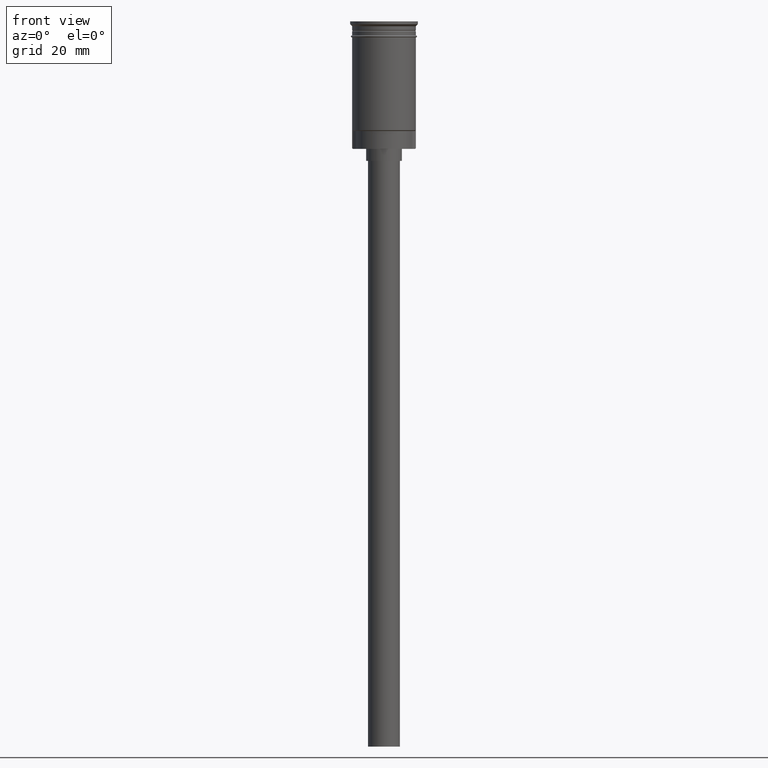
[diagram: clean part render]
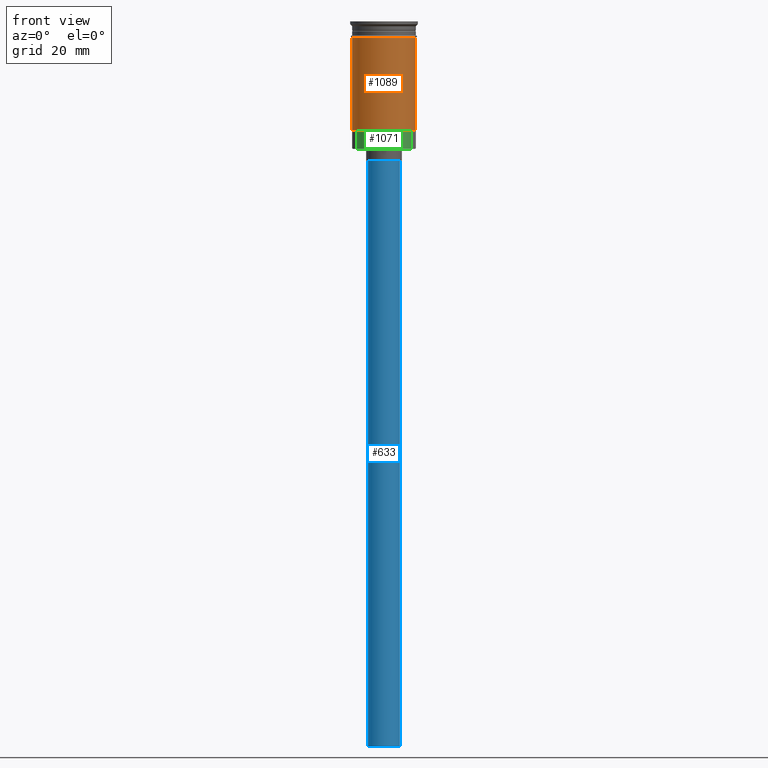
[diagram: same view with three faces highlighted in distinct colors, each labeled with its STEP entity id]
A machine part, front view with three faces highlighted in distinct colors.
Their STEP definitions:

[orange] entity #1089 — the highlighted cylindrical surface (edge-blend (fillet) strip) has radius 8 mm, axis along (-0, -0, 1).
#37 = LINE ( 'NONE', #151, #1169 ) ;
#113 = LINE ( 'NONE', #1078, #822 ) ;
#125 = CYLINDRICAL_SURFACE ( 'NONE', #983, 7.999999999999996447 ) ;
#151 = CARTESIAN_POINT ( 'NONE',  ( -7.999999999999996447, 9.797174393178821713E-16, 0.000000000000000000 ) ) ;
#179 = ORIENTED_EDGE ( 'NONE', *, *, #1066, .T. ) ;
#200 = EDGE_CURVE ( 'NONE', #944, #554, #666, .T. ) ;
#228 = ORIENTED_EDGE ( 'NONE', *, *, #1253, .F. ) ;
#264 = EDGE_CURVE ( 'NONE', #1410, #554, #113, .T. ) ;
#369 = DIRECTION ( 'NONE',  ( -0.000000000000000000, -0.000000000000000000, 1.000000000000000000 ) ) ;
#372 = DIRECTION ( 'NONE',  ( 1.000000000000000000, 0.000000000000000000, 0.000000000000000000 ) ) ;
#406 = ORIENTED_EDGE ( 'NONE', *, *, #264, .T. ) ;
#495 = DIRECTION ( 'NONE',  ( -0.000000000000000000, -0.000000000000000000, 1.000000000000000000 ) ) ;
#498 = FACE_OUTER_BOUND ( 'NONE', #1425, .T. ) ;
#554 = VERTEX_POINT ( 'NONE', #1565 ) ;
#666 = CIRCLE ( 'NONE', #1548, 8.000000000000000000 ) ;
#703 = CARTESIAN_POINT ( 'NONE',  ( 7.999999999999996447, 9.797174393178821713E-16, -27.29999999999996518 ) ) ;
#822 = VECTOR ( 'NONE', #369, 1000.000000000000000 ) ;
#827 = CIRCLE ( 'NONE', #1060, 7.999999999999996447 ) ;
#881 = CARTESIAN_POINT ( 'NONE',  ( 0.000000000000000000, 0.000000000000000000, 0.000000000000000000 ) ) ;
#929 = CARTESIAN_POINT ( 'NONE',  ( -8.000000000000000000, 9.797174393178825657E-16, -3.999999999999997335 ) ) ;
#944 = VERTEX_POINT ( 'NONE', #929 ) ;
#971 = DIRECTION ( 'NONE',  ( -0.000000000000000000, -0.000000000000000000, 1.000000000000000000 ) ) ;
#983 = AXIS2_PLACEMENT_3D ( 'NONE', #881, #971, #372 ) ;
#985 = DIRECTION ( 'NONE',  ( 1.000000000000000000, 0.000000000000000000, 0.000000000000000000 ) ) ;
#1060 = AXIS2_PLACEMENT_3D ( 'NONE', #1310, #1450, #1194 ) ;
#1066 = EDGE_CURVE ( 'NONE', #1203, #1410, #827, .T. ) ;
#1078 = CARTESIAN_POINT ( 'NONE',  ( 7.999999999999996447, 0.000000000000000000, 0.000000000000000000 ) ) ;
#1089 = ADVANCED_FACE ( 'NONE', ( #498 ), #125, .T. ) ;
#1132 = CARTESIAN_POINT ( 'NONE',  ( -7.999999999999992895, 0.000000000000000000, -27.29999999999996518 ) ) ;
#1169 = VECTOR ( 'NONE', #1537, 1000.000000000000000 ) ;
#1194 = DIRECTION ( 'NONE',  ( -1.000000000000000000, 0.000000000000000000, 0.000000000000000000 ) ) ;
#1203 = VERTEX_POINT ( 'NONE', #1132 ) ;
#1253 = EDGE_CURVE ( 'NONE', #1203, #944, #37, .T. ) ;
#1310 = CARTESIAN_POINT ( 'NONE',  ( 0.000000000000000000, 0.000000000000000000, -27.29999999999996518 ) ) ;
#1332 = CARTESIAN_POINT ( 'NONE',  ( 0.000000000000000000, 0.000000000000000000, -3.999999999999997335 ) ) ;
#1410 = VERTEX_POINT ( 'NONE', #703 ) ;
#1425 = EDGE_LOOP ( 'NONE', ( #228, #179, #406, #1603 ) ) ;
#1450 = DIRECTION ( 'NONE',  ( -0.000000000000000000, -0.000000000000000000, 1.000000000000000000 ) ) ;
#1537 = DIRECTION ( 'NONE',  ( -0.000000000000000000, -0.000000000000000000, 1.000000000000000000 ) ) ;
#1548 = AXIS2_PLACEMENT_3D ( 'NONE', #1332, #495, #985 ) ;
#1565 = CARTESIAN_POINT ( 'NONE',  ( 8.000000000000000000, 0.000000000000000000, -3.999999999999997335 ) ) ;
#1603 = ORIENTED_EDGE ( 'NONE', *, *, #200, .F. ) ;

[blue] entity #633 — the highlighted cylindrical surface (edge-blend (fillet) strip) has radius 4 mm, axis along (-0, -0, 1).
#7 = CYLINDRICAL_SURFACE ( 'NONE', #1602, 4.000000000000000000 ) ;
#50 = EDGE_CURVE ( 'NONE', #1051, #707, #96, .T. ) ;
#58 = LINE ( 'NONE', #209, #133 ) ;
#96 = CIRCLE ( 'NONE', #1005, 4.000000000000000000 ) ;
#117 = EDGE_LOOP ( 'NONE', ( #346, #814, #221, #1472 ) ) ;
#133 = VECTOR ( 'NONE', #1326, 1000.000000000000000 ) ;
#158 = CARTESIAN_POINT ( 'NONE',  ( 4.000000000000000000, 0.000000000000000000, -182.0000000000000000 ) ) ;
#209 = CARTESIAN_POINT ( 'NONE',  ( -4.000000000000000000, 4.898587196589412829E-16, -182.0000000000000000 ) ) ;
#221 = ORIENTED_EDGE ( 'NONE', *, *, #319, .T. ) ;
#283 = CIRCLE ( 'NONE', #1191, 4.000000000000000000 ) ;
#319 = EDGE_CURVE ( 'NONE', #1051, #380, #656, .T. ) ;
#346 = ORIENTED_EDGE ( 'NONE', *, *, #1361, .F. ) ;
#357 = CARTESIAN_POINT ( 'NONE',  ( -4.000000000000000000, 4.898587196589412829E-16, -182.0000000000000000 ) ) ;
#374 = FACE_OUTER_BOUND ( 'NONE', #117, .T. ) ;
#380 = VERTEX_POINT ( 'NONE', #912 ) ;
#394 = DIRECTION ( 'NONE',  ( 0.000000000000000000, 0.000000000000000000, -1.000000000000000000 ) ) ;
#456 = CARTESIAN_POINT ( 'NONE',  ( 4.000000000000000000, 0.000000000000000000, -182.0000000000000000 ) ) ;
#458 = DIRECTION ( 'NONE',  ( 0.000000000000000000, 0.000000000000000000, -1.000000000000000000 ) ) ;
#501 = CARTESIAN_POINT ( 'NONE',  ( 0.000000000000000000, 0.000000000000000000, -182.0000000000000000 ) ) ;
#511 = CARTESIAN_POINT ( 'NONE',  ( -4.000000000000000000, 4.898587196589412829E-16, -35.00000000000000000 ) ) ;
#543 = EDGE_CURVE ( 'NONE', #380, #1323, #283, .T. ) ;
#633 = ADVANCED_FACE ( 'NONE', ( #374 ), #7, .T. ) ;
#656 = LINE ( 'NONE', #158, #1244 ) ;
#707 = VERTEX_POINT ( 'NONE', #357 ) ;
#814 = ORIENTED_EDGE ( 'NONE', *, *, #50, .F. ) ;
#912 = CARTESIAN_POINT ( 'NONE',  ( 4.000000000000000000, 0.000000000000000000, -35.00000000000000000 ) ) ;
#1005 = AXIS2_PLACEMENT_3D ( 'NONE', #1011, #394, #1018 ) ;
#1011 = CARTESIAN_POINT ( 'NONE',  ( 0.000000000000000000, 0.000000000000000000, -182.0000000000000000 ) ) ;
#1018 = DIRECTION ( 'NONE',  ( -1.000000000000000000, 0.000000000000000000, 0.000000000000000000 ) ) ;
#1051 = VERTEX_POINT ( 'NONE', #456 ) ;
#1191 = AXIS2_PLACEMENT_3D ( 'NONE', #1572, #458, #1213 ) ;
#1213 = DIRECTION ( 'NONE',  ( -1.000000000000000000, 0.000000000000000000, 0.000000000000000000 ) ) ;
#1237 = DIRECTION ( 'NONE',  ( -0.000000000000000000, -0.000000000000000000, 1.000000000000000000 ) ) ;
#1244 = VECTOR ( 'NONE', #1510, 1000.000000000000000 ) ;
#1323 = VERTEX_POINT ( 'NONE', #511 ) ;
#1326 = DIRECTION ( 'NONE',  ( -0.000000000000000000, -0.000000000000000000, 1.000000000000000000 ) ) ;
#1361 = EDGE_CURVE ( 'NONE', #707, #1323, #58, .T. ) ;
#1363 = DIRECTION ( 'NONE',  ( 1.000000000000000000, 0.000000000000000000, 0.000000000000000000 ) ) ;
#1472 = ORIENTED_EDGE ( 'NONE', *, *, #543, .T. ) ;
#1510 = DIRECTION ( 'NONE',  ( -0.000000000000000000, -0.000000000000000000, 1.000000000000000000 ) ) ;
#1572 = CARTESIAN_POINT ( 'NONE',  ( 0.000000000000000000, 0.000000000000000000, -35.00000000000000000 ) ) ;
#1602 = AXIS2_PLACEMENT_3D ( 'NONE', #501, #1237, #1363 ) ;

[green] entity #1071 — the highlighted cylindrical surface (edge-blend (fillet) strip) has radius 7.05 mm, axis along (-0, -0, 1).
#46 = CIRCLE ( 'NONE', #1397, 7.049999999999998934 ) ;
#203 = ORIENTED_EDGE ( 'NONE', *, *, #223, .T. ) ;
#214 = VECTOR ( 'NONE', #1464, 1000.000000000000000 ) ;
#223 = EDGE_CURVE ( 'NONE', #1367, #761, #46, .T. ) ;
#276 = DIRECTION ( 'NONE',  ( 0.000000000000000000, 0.000000000000000000, -1.000000000000000000 ) ) ;
#350 = DIRECTION ( 'NONE',  ( -0.000000000000000000, -0.000000000000000000, 1.000000000000000000 ) ) ;
#408 = VECTOR ( 'NONE', #350, 1000.000000000000000 ) ;
#420 = VERTEX_POINT ( 'NONE', #516 ) ;
#425 = DIRECTION ( 'NONE',  ( -1.000000000000000000, 0.000000000000000000, 0.000000000000000000 ) ) ;
#470 = CARTESIAN_POINT ( 'NONE',  ( 6.839661847014925300, -1.709247149621250017, -32.00000000000000000 ) ) ;
#516 = CARTESIAN_POINT ( 'NONE',  ( -6.839661847014926188, -1.709247149621246686, -32.00000000000000000 ) ) ;
#573 = EDGE_CURVE ( 'NONE', #1327, #1367, #1435, .T. ) ;
#584 = DIRECTION ( 'NONE',  ( -0.000000000000000000, -0.000000000000000000, 1.000000000000000000 ) ) ;
#694 = AXIS2_PLACEMENT_3D ( 'NONE', #1168, #276, #425 ) ;
#696 = CARTESIAN_POINT ( 'NONE',  ( 6.839661847014925300, -1.709247149621250017, -27.50000000000000355 ) ) ;
#706 = CYLINDRICAL_SURFACE ( 'NONE', #1195, 7.049999999999998934 ) ;
#727 = CARTESIAN_POINT ( 'NONE',  ( 0.000000000000000000, 0.000000000000000000, -27.50000000000000355 ) ) ;
#761 = VERTEX_POINT ( 'NONE', #1030 ) ;
#798 = CIRCLE ( 'NONE', #694, 7.049999999999998934 ) ;
#888 = CARTESIAN_POINT ( 'NONE',  ( 6.839661847014925300, -1.709247149621250017, -32.00000000000000000 ) ) ;
#968 = DIRECTION ( 'NONE',  ( 0.000000000000000000, 0.000000000000000000, -1.000000000000000000 ) ) ;
#987 = ORIENTED_EDGE ( 'NONE', *, *, #1275, .F. ) ;
#1030 = CARTESIAN_POINT ( 'NONE',  ( -6.839661847014926188, -1.709247149621246686, -27.50000000000000355 ) ) ;
#1071 = ADVANCED_FACE ( 'NONE', ( #1563 ), #706, .T. ) ;
#1096 = DIRECTION ( 'NONE',  ( -1.000000000000000000, 0.000000000000000000, 0.000000000000000000 ) ) ;
#1097 = LINE ( 'NONE', #1592, #214 ) ;
#1168 = CARTESIAN_POINT ( 'NONE',  ( 0.000000000000000000, 0.000000000000000000, -32.00000000000000000 ) ) ;
#1195 = AXIS2_PLACEMENT_3D ( 'NONE', #1211, #584, #1334 ) ;
#1211 = CARTESIAN_POINT ( 'NONE',  ( 0.000000000000000000, 0.000000000000000000, -32.00000000000000000 ) ) ;
#1257 = ORIENTED_EDGE ( 'NONE', *, *, #573, .T. ) ;
#1275 = EDGE_CURVE ( 'NONE', #1327, #420, #798, .T. ) ;
#1288 = ORIENTED_EDGE ( 'NONE', *, *, #1479, .F. ) ;
#1327 = VERTEX_POINT ( 'NONE', #888 ) ;
#1334 = DIRECTION ( 'NONE',  ( 1.000000000000000000, 0.000000000000000000, 0.000000000000000000 ) ) ;
#1367 = VERTEX_POINT ( 'NONE', #696 ) ;
#1397 = AXIS2_PLACEMENT_3D ( 'NONE', #727, #968, #1096 ) ;
#1435 = LINE ( 'NONE', #470, #408 ) ;
#1464 = DIRECTION ( 'NONE',  ( -0.000000000000000000, -0.000000000000000000, 1.000000000000000000 ) ) ;
#1479 = EDGE_CURVE ( 'NONE', #420, #761, #1097, .T. ) ;
#1508 = EDGE_LOOP ( 'NONE', ( #203, #1288, #987, #1257 ) ) ;
#1563 = FACE_OUTER_BOUND ( 'NONE', #1508, .T. ) ;
#1592 = CARTESIAN_POINT ( 'NONE',  ( -6.839661847014926188, -1.709247149621246686, -32.00000000000000000 ) ) ;